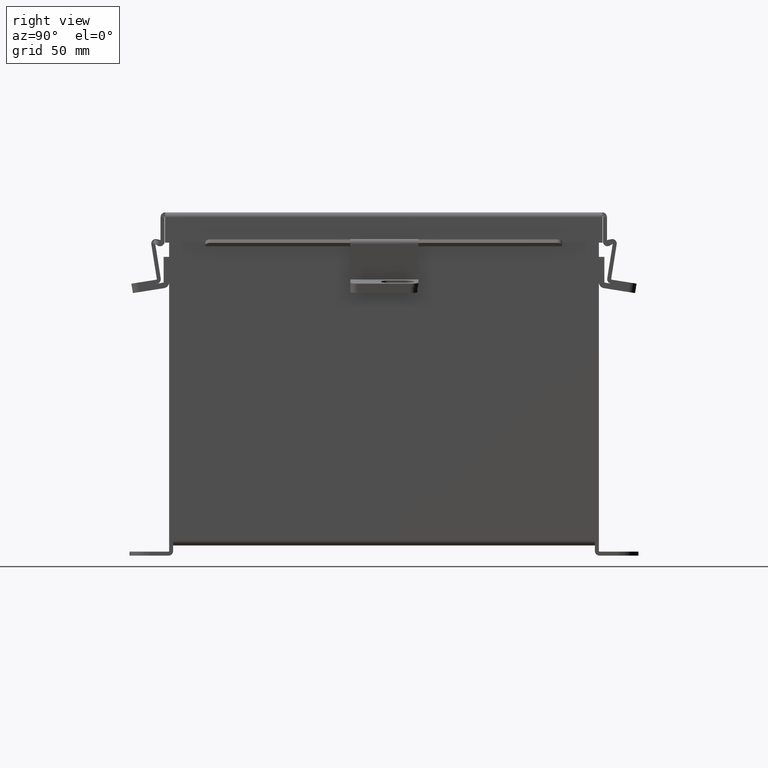
[diagram: clean part render]
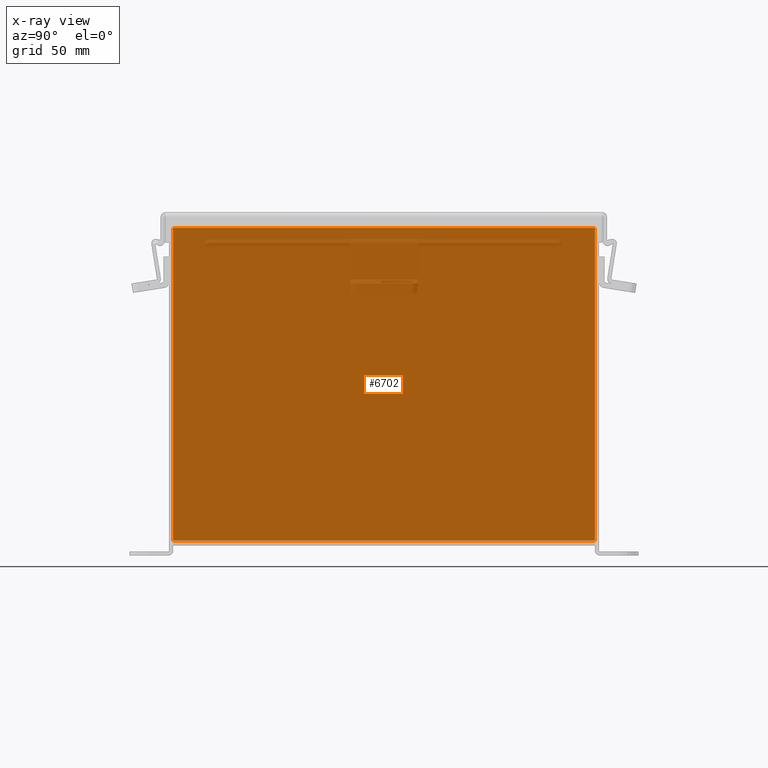
[diagram: x-ray — body ghosted, one internal face saturated and labeled with its STEP entity id]
A machine part, right view, then the same camera in x-ray: the body is ghosted and one INTERNAL B-rep face — a face not visible from any outside direction — is saturated and labeled: STEP entity #6702.
In plain terms, the highlighted planar face has unit normal (1, 0, 0).
Its self-contained STEP definition (entity closure, byte-faithful):
#257 = LINE ( 'NONE', #2930, #3991 ) ;
#347 = CARTESIAN_POINT ( 'NONE',  ( -2.925299999999999600, 3.925300000000000500, -2.701507866479869700E-018 ) ) ;
#486 = VERTEX_POINT ( 'NONE', #3364 ) ;
#648 = VECTOR ( 'NONE', #7972, 39.37007874015748100 ) ;
#1105 = DIRECTION ( 'NONE',  ( 3.455316574900958600E-015, -0.0000000000000000000, -1.000000000000000000 ) ) ;
#1874 = EDGE_CURVE ( 'NONE', #5487, #5872, #3204, .T. ) ;
#1889 = EDGE_LOOP ( 'NONE', ( #5262, #5292, #3438, #4679 ) ) ;
#1988 = CARTESIAN_POINT ( 'NONE',  ( -2.925299999999999600, -3.925299999999999100, 0.01299999999999951400 ) ) ;
#2404 = LINE ( 'NONE', #3600, #648 ) ;
#2930 = CARTESIAN_POINT ( 'NONE',  ( -2.925300000000019600, -3.925299999999998200, 5.850600000000000000 ) ) ;
#3143 = CARTESIAN_POINT ( 'NONE',  ( -2.925300000000018700, 3.925300000000000500, 5.837600000000000100 ) ) ;
#3204 = LINE ( 'NONE', #4694, #4445 ) ;
#3364 = CARTESIAN_POINT ( 'NONE',  ( -2.925299999999999600, 3.925300000000000500, 0.01300000000000015900 ) ) ;
#3438 = ORIENTED_EDGE ( 'NONE', *, *, #7770, .F. ) ;
#3600 = CARTESIAN_POINT ( 'NONE',  ( -2.925299999999999600, 3.925300000000000500, 0.01300000000000010700 ) ) ;
#3991 = VECTOR ( 'NONE', #7336, 39.37007874015748100 ) ;
#4445 = VECTOR ( 'NONE', #7626, 39.37007874015748100 ) ;
#4454 = VERTEX_POINT ( 'NONE', #1988 ) ;
#4542 = EDGE_CURVE ( 'NONE', #486, #4454, #2404, .T. ) ;
#4679 = ORIENTED_EDGE ( 'NONE', *, *, #4542, .F. ) ;
#4694 = CARTESIAN_POINT ( 'NONE',  ( -2.925300000000018700, -3.925299999999998200, 5.837600000000000100 ) ) ;
#5117 = LINE ( 'NONE', #347, #8792 ) ;
#5262 = ORIENTED_EDGE ( 'NONE', *, *, #8123, .F. ) ;
#5292 = ORIENTED_EDGE ( 'NONE', *, *, #1874, .F. ) ;
#5487 = VERTEX_POINT ( 'NONE', #5860 ) ;
#5860 = CARTESIAN_POINT ( 'NONE',  ( -2.925300000000019600, -3.925299999999998200, 5.837600000000000100 ) ) ;
#5872 = VERTEX_POINT ( 'NONE', #3143 ) ;
#5927 = AXIS2_PLACEMENT_3D ( 'NONE', #6380, #7839, #7870 ) ;
#6380 = CARTESIAN_POINT ( 'NONE',  ( -2.925299999999999600, 0.0000000000000000000, -1.036594972470287400E-014 ) ) ;
#6702 = ADVANCED_FACE ( 'NONE', ( #7729 ), #7130, .T. ) ;
#7130 = PLANE ( 'NONE',  #5927 ) ;
#7336 = DIRECTION ( 'NONE',  ( -3.455316574900958600E-015, 1.867738689135653700E-016, 1.000000000000000000 ) ) ;
#7626 = DIRECTION ( 'NONE',  ( 0.0000000000000000000, 1.000000000000000000, 0.0000000000000000000 ) ) ;
#7729 = FACE_OUTER_BOUND ( 'NONE', #1889, .T. ) ;
#7770 = EDGE_CURVE ( 'NONE', #4454, #5487, #257, .T. ) ;
#7839 = DIRECTION ( 'NONE',  ( 1.000000000000000000, 0.0000000000000000000, 3.455316574900958600E-015 ) ) ;
#7870 = DIRECTION ( 'NONE',  ( 3.455316574900958600E-015, 0.0000000000000000000, -1.000000000000000000 ) ) ;
#7972 = DIRECTION ( 'NONE',  ( 2.404758783435166500E-031, -1.000000000000000000, -6.959590333641412800E-017 ) ) ;
#8123 = EDGE_CURVE ( 'NONE', #5872, #486, #5117, .T. ) ;
#8792 = VECTOR ( 'NONE', #1105, 39.37007874015748100 ) ;